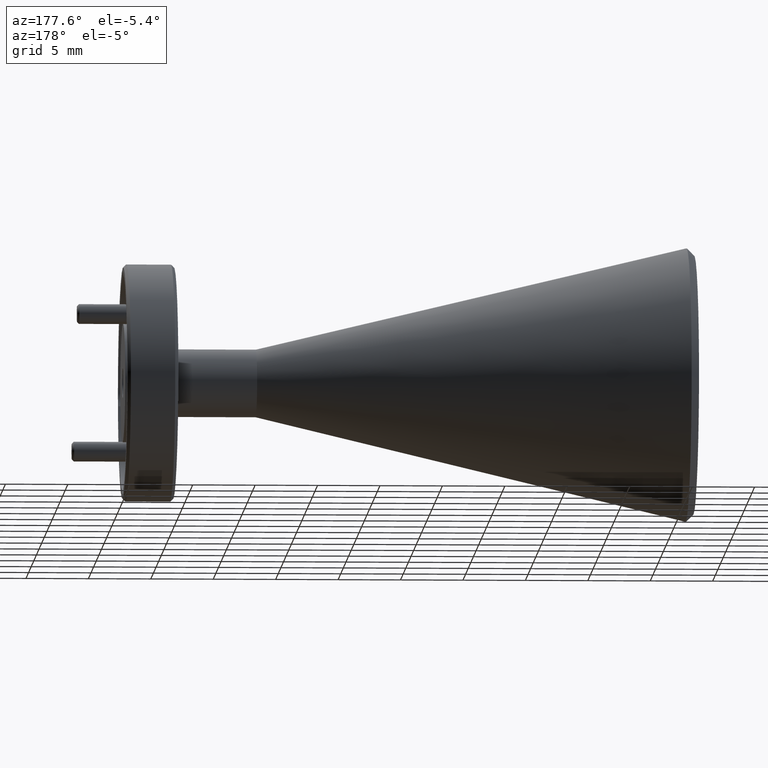
[diagram: clean part render]
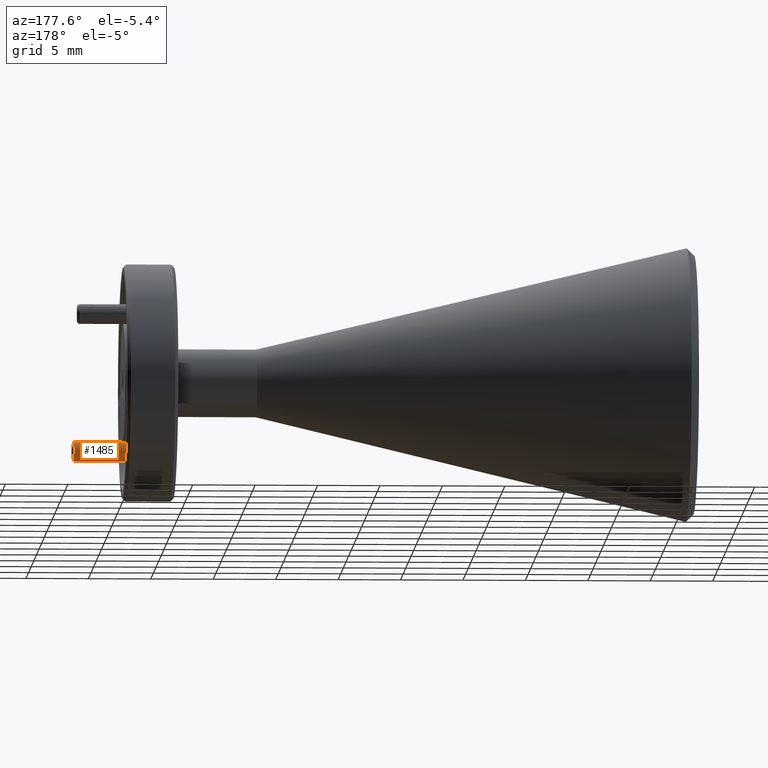
[diagram: same view with one face highlighted and labeled with its STEP entity id]
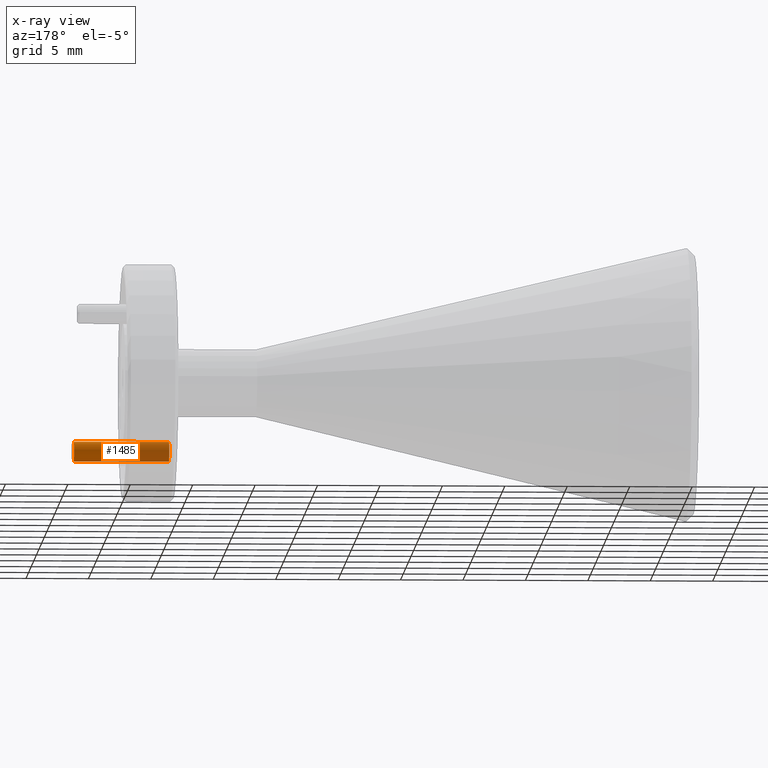
[diagram: x-ray of the same camera — body ghosted, the highlighted face saturated]
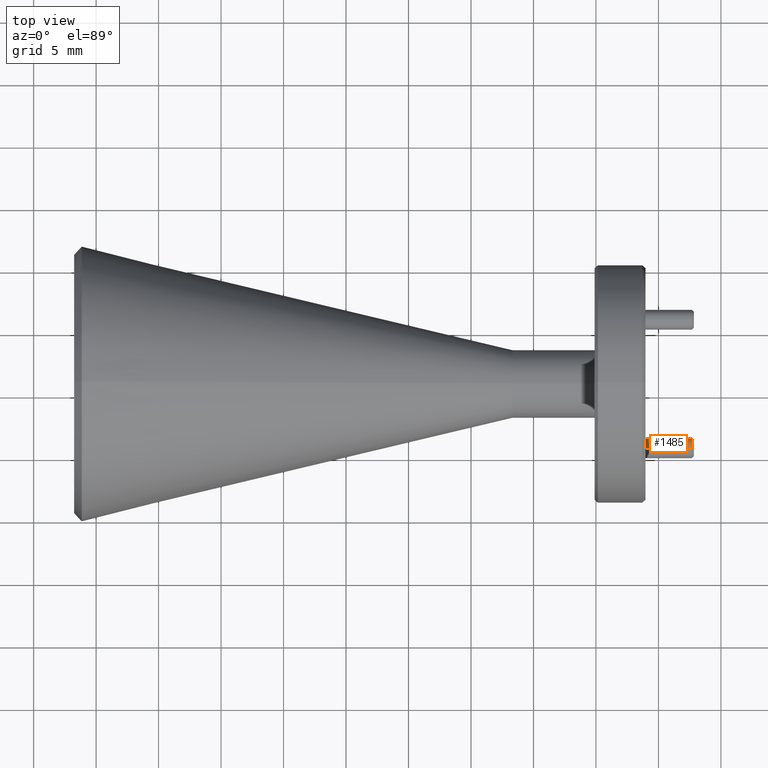
[diagram: same view with one face highlighted and labeled with its STEP entity id]
A machine part, auxiliary view. The second image highlights one B-rep face of the part: STEP entity #1485.
The next image is the same camera in x-ray: the body ghosted, the highlighted face saturated — about 45% of this face is hidden behind the body in this view.
A second angle (top view) of the same face is appended — the face is thin or edge-on in the first view.
In plain terms, the highlighted cylindrical surface (edge-blend (fillet) strip) has radius 0.7938 mm, axis along (1, 0, 0).
Its self-contained STEP definition (entity closure, byte-faithful):
#95 = EDGE_CURVE ( 'NONE', #1368, #2165, #1279, .T. ) ;
#250 = ORIENTED_EDGE ( 'NONE', *, *, #2287, .T. ) ;
#291 = DIRECTION ( 'NONE',  ( 1.000000000000000000, 0.000000000000000000, 0.000000000000000000 ) ) ;
#483 = VERTEX_POINT ( 'NONE', #755 ) ;
#536 = CARTESIAN_POINT ( 'NONE',  ( -5.312711933510679607, 1.018430148517194711, 2.171339526780714735 ) ) ;
#577 = CARTESIAN_POINT ( 'NONE',  ( -5.312711933510679607, 1.018430148517194711, 2.140089526780714291 ) ) ;
#604 = ORIENTED_EDGE ( 'NONE', *, *, #2076, .T. ) ;
#607 = LINE ( 'NONE', #2063, #2231 ) ;
#651 = ORIENTED_EDGE ( 'NONE', *, *, #95, .F. ) ;
#699 = CYLINDRICAL_SURFACE ( 'NONE', #1008, 0.03125000000000011102 ) ;
#755 = CARTESIAN_POINT ( 'NONE',  ( -5.012711933510678897, 1.018430148517194711, 2.202589526780714735 ) ) ;
#817 = CIRCLE ( 'NONE', #1338, 0.03125000000000011102 ) ;
#1008 = AXIS2_PLACEMENT_3D ( 'NONE', #2269, #291, #2113 ) ;
#1073 = VECTOR ( 'NONE', #1861, 39.37007874015748143 ) ;
#1083 = DIRECTION ( 'NONE',  ( 1.000000000000000000, -0.000000000000000000, -0.000000000000000000 ) ) ;
#1279 = LINE ( 'NONE', #2029, #1073 ) ;
#1290 = DIRECTION ( 'NONE',  ( 0.000000000000000000, 0.000000000000000000, -1.000000000000000000 ) ) ;
#1332 = DIRECTION ( 'NONE',  ( 1.000000000000000000, 0.000000000000000000, 0.000000000000000000 ) ) ;
#1338 = AXIS2_PLACEMENT_3D ( 'NONE', #536, #1083, #1487 ) ;
#1368 = VERTEX_POINT ( 'NONE', #577 ) ;
#1405 = FACE_OUTER_BOUND ( 'NONE', #2316, .T. ) ;
#1447 = AXIS2_PLACEMENT_3D ( 'NONE', #2208, #2179, #1290 ) ;
#1485 = ADVANCED_FACE ( 'NONE', ( #1405 ), #699, .T. ) ;
#1487 = DIRECTION ( 'NONE',  ( 0.000000000000000000, 0.000000000000000000, -1.000000000000000000 ) ) ;
#1562 = ORIENTED_EDGE ( 'NONE', *, *, #1610, .T. ) ;
#1610 = EDGE_CURVE ( 'NONE', #1368, #2232, #817, .T. ) ;
#1658 = CARTESIAN_POINT ( 'NONE',  ( -5.312711933510679607, 1.018430148517194711, 2.202589526780714735 ) ) ;
#1861 = DIRECTION ( 'NONE',  ( 1.000000000000000000, 0.000000000000000000, 0.000000000000000000 ) ) ;
#1962 = CARTESIAN_POINT ( 'NONE',  ( -5.012711933510678897, 1.018430148517194711, 2.140089526780714291 ) ) ;
#1985 = CIRCLE ( 'NONE', #1447, 0.03125000000000011102 ) ;
#2029 = CARTESIAN_POINT ( 'NONE',  ( -5.318961933510678364, 1.018430148517194711, 2.140089526780714291 ) ) ;
#2063 = CARTESIAN_POINT ( 'NONE',  ( -5.318961933510678364, 1.018430148517194711, 2.202589526780714735 ) ) ;
#2076 = EDGE_CURVE ( 'NONE', #2232, #483, #607, .T. ) ;
#2113 = DIRECTION ( 'NONE',  ( 0.000000000000000000, 0.000000000000000000, -1.000000000000000000 ) ) ;
#2165 = VERTEX_POINT ( 'NONE', #1962 ) ;
#2179 = DIRECTION ( 'NONE',  ( -1.000000000000000000, 0.000000000000000000, 0.000000000000000000 ) ) ;
#2208 = CARTESIAN_POINT ( 'NONE',  ( -5.012711933510678897, 1.018430148517194711, 2.171339526780714735 ) ) ;
#2231 = VECTOR ( 'NONE', #1332, 39.37007874015748143 ) ;
#2232 = VERTEX_POINT ( 'NONE', #1658 ) ;
#2269 = CARTESIAN_POINT ( 'NONE',  ( -5.318961933510678364, 1.018430148517194711, 2.171339526780714735 ) ) ;
#2287 = EDGE_CURVE ( 'NONE', #483, #2165, #1985, .T. ) ;
#2316 = EDGE_LOOP ( 'NONE', ( #1562, #604, #250, #651 ) ) ;